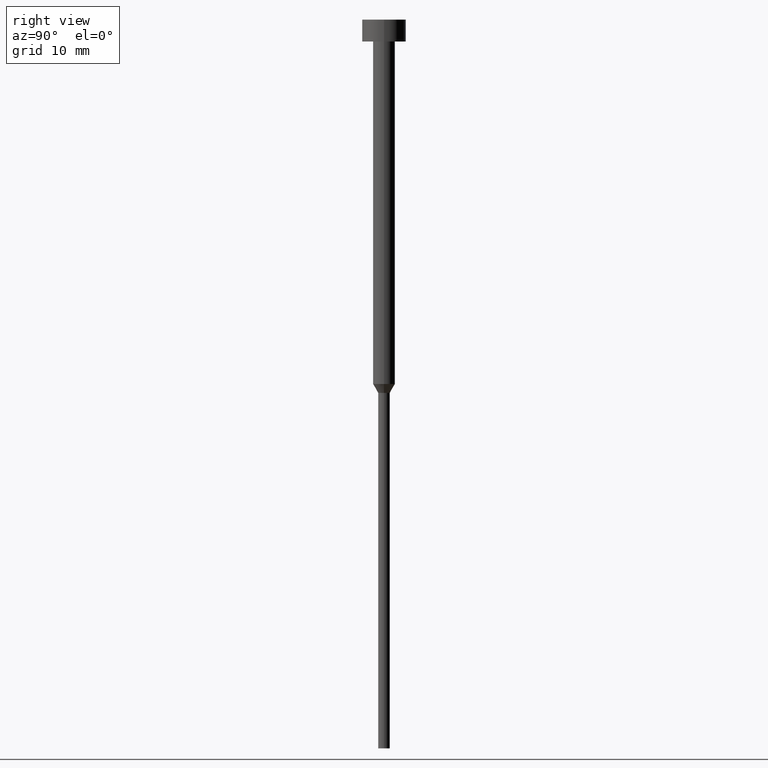
[diagram: clean part render]
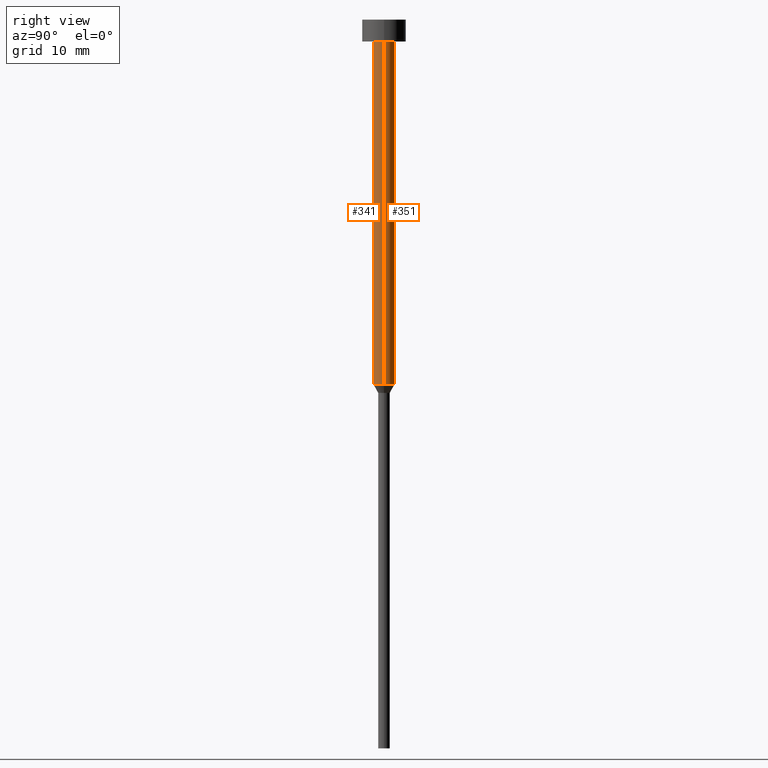
[diagram: same view with one multi-face feature highlighted, each face labeled with its STEP entity id]
A machine part, right view. The highlighted faces form ONE feature: a constant-radius fillet chain: 2 tangent blend faces with common blend radius 1.5 mm. The faces share edges in the B-rep.
Their STEP definitions:
[1] entity #341 (Cylinder):
#2 = DIRECTION ( 'NONE',  ( -0.000000000000000000, -0.000000000000000000, 1.000000000000000000 ) ) ;
#18 = CARTESIAN_POINT ( 'NONE',  ( -1.500000000000000000, 1.836970198721029934E-16, -3.000000000000000888 ) ) ;
#26 = FACE_OUTER_BOUND ( 'NONE', #109, .T. ) ;
#30 = CIRCLE ( 'NONE', #173, 1.500000000000000000 ) ;
#36 = VECTOR ( 'NONE', #80, 1000.000000000000000 ) ;
#53 = DIRECTION ( 'NONE',  ( -0.000000000000000000, -0.000000000000000000, 1.000000000000000000 ) ) ;
#54 = DIRECTION ( 'NONE',  ( 1.000000000000000000, 0.000000000000000000, 0.000000000000000000 ) ) ;
#63 = VERTEX_POINT ( 'NONE', #319 ) ;
#76 = CARTESIAN_POINT ( 'NONE',  ( 0.000000000000000000, 0.000000000000000000, 0.000000000000000000 ) ) ;
#80 = DIRECTION ( 'NONE',  ( -0.000000000000000000, -0.000000000000000000, 1.000000000000000000 ) ) ;
#104 = DIRECTION ( 'NONE',  ( 1.000000000000000000, 0.000000000000000000, 0.000000000000000000 ) ) ;
#105 = EDGE_CURVE ( 'NONE', #244, #63, #255, .T. ) ;
#109 = EDGE_LOOP ( 'NONE', ( #247, #280, #308, #230 ) ) ;
#121 = CIRCLE ( 'NONE', #125, 1.500000000000000000 ) ;
#125 = AXIS2_PLACEMENT_3D ( 'NONE', #210, #300, #54 ) ;
#127 = CARTESIAN_POINT ( 'NONE',  ( 1.500000000000000000, 0.000000000000000000, 0.000000000000000000 ) ) ;
#147 = VERTEX_POINT ( 'NONE', #18 ) ;
#166 = CARTESIAN_POINT ( 'NONE',  ( -1.500000000000000000, 1.836970198721029934E-16, -50.00000000000000000 ) ) ;
#173 = AXIS2_PLACEMENT_3D ( 'NONE', #211, #53, #104 ) ;
#181 = DIRECTION ( 'NONE',  ( 1.000000000000000000, 0.000000000000000000, 0.000000000000000000 ) ) ;
#207 = LINE ( 'NONE', #328, #36 ) ;
#209 = CARTESIAN_POINT ( 'NONE',  ( 1.500000000000000000, 0.000000000000000000, -50.00000000000000000 ) ) ;
#210 = CARTESIAN_POINT ( 'NONE',  ( 0.000000000000000000, 0.000000000000000000, -3.000000000000000888 ) ) ;
#211 = CARTESIAN_POINT ( 'NONE',  ( 0.000000000000000000, 0.000000000000000000, -50.00000000000000000 ) ) ;
#230 = ORIENTED_EDGE ( 'NONE', *, *, #295, .F. ) ;
#244 = VERTEX_POINT ( 'NONE', #209 ) ;
#247 = ORIENTED_EDGE ( 'NONE', *, *, #252, .F. ) ;
#251 = VERTEX_POINT ( 'NONE', #166 ) ;
#252 = EDGE_CURVE ( 'NONE', #251, #147, #207, .T. ) ;
#255 = LINE ( 'NONE', #127, #325 ) ;
#278 = EDGE_CURVE ( 'NONE', #251, #244, #30, .T. ) ;
#280 = ORIENTED_EDGE ( 'NONE', *, *, #278, .T. ) ;
#292 = DIRECTION ( 'NONE',  ( -0.000000000000000000, -0.000000000000000000, 1.000000000000000000 ) ) ;
#295 = EDGE_CURVE ( 'NONE', #147, #63, #121, .T. ) ;
#300 = DIRECTION ( 'NONE',  ( -0.000000000000000000, -0.000000000000000000, 1.000000000000000000 ) ) ;
#308 = ORIENTED_EDGE ( 'NONE', *, *, #105, .T. ) ;
#319 = CARTESIAN_POINT ( 'NONE',  ( 1.500000000000000000, 0.000000000000000000, -3.000000000000000888 ) ) ;
#325 = VECTOR ( 'NONE', #292, 1000.000000000000000 ) ;
#328 = CARTESIAN_POINT ( 'NONE',  ( -1.500000000000000000, 1.836970198721029934E-16, 0.000000000000000000 ) ) ;
#334 = AXIS2_PLACEMENT_3D ( 'NONE', #76, #2, #181 ) ;
#341 = ADVANCED_FACE ( 'NONE', ( #26 ), #354, .T. ) ;
#354 = CYLINDRICAL_SURFACE ( 'NONE', #334, 1.500000000000000000 ) ;
[2] entity #351 (Cylinder):
#18 = CARTESIAN_POINT ( 'NONE',  ( -1.500000000000000000, 1.836970198721029934E-16, -3.000000000000000888 ) ) ;
#31 = CYLINDRICAL_SURFACE ( 'NONE', #97, 1.500000000000000000 ) ;
#36 = VECTOR ( 'NONE', #80, 1000.000000000000000 ) ;
#40 = ORIENTED_EDGE ( 'NONE', *, *, #252, .T. ) ;
#59 = ORIENTED_EDGE ( 'NONE', *, *, #231, .F. ) ;
#63 = VERTEX_POINT ( 'NONE', #319 ) ;
#79 = AXIS2_PLACEMENT_3D ( 'NONE', #222, #346, #175 ) ;
#80 = DIRECTION ( 'NONE',  ( -0.000000000000000000, -0.000000000000000000, 1.000000000000000000 ) ) ;
#97 = AXIS2_PLACEMENT_3D ( 'NONE', #113, #236, #168 ) ;
#105 = EDGE_CURVE ( 'NONE', #244, #63, #255, .T. ) ;
#106 = CARTESIAN_POINT ( 'NONE',  ( 0.000000000000000000, 0.000000000000000000, -3.000000000000000888 ) ) ;
#108 = DIRECTION ( 'NONE',  ( -0.000000000000000000, -0.000000000000000000, 1.000000000000000000 ) ) ;
#113 = CARTESIAN_POINT ( 'NONE',  ( 0.000000000000000000, 0.000000000000000000, 0.000000000000000000 ) ) ;
#127 = CARTESIAN_POINT ( 'NONE',  ( 1.500000000000000000, 0.000000000000000000, 0.000000000000000000 ) ) ;
#134 = DIRECTION ( 'NONE',  ( 1.000000000000000000, 0.000000000000000000, 0.000000000000000000 ) ) ;
#147 = VERTEX_POINT ( 'NONE', #18 ) ;
#156 = EDGE_CURVE ( 'NONE', #244, #251, #198, .T. ) ;
#164 = ORIENTED_EDGE ( 'NONE', *, *, #105, .F. ) ;
#166 = CARTESIAN_POINT ( 'NONE',  ( -1.500000000000000000, 1.836970198721029934E-16, -50.00000000000000000 ) ) ;
#168 = DIRECTION ( 'NONE',  ( 1.000000000000000000, 0.000000000000000000, 0.000000000000000000 ) ) ;
#175 = DIRECTION ( 'NONE',  ( 1.000000000000000000, 0.000000000000000000, 0.000000000000000000 ) ) ;
#182 = CIRCLE ( 'NONE', #235, 1.500000000000000000 ) ;
#198 = CIRCLE ( 'NONE', #79, 1.500000000000000000 ) ;
#207 = LINE ( 'NONE', #328, #36 ) ;
#209 = CARTESIAN_POINT ( 'NONE',  ( 1.500000000000000000, 0.000000000000000000, -50.00000000000000000 ) ) ;
#222 = CARTESIAN_POINT ( 'NONE',  ( 0.000000000000000000, 0.000000000000000000, -50.00000000000000000 ) ) ;
#231 = EDGE_CURVE ( 'NONE', #63, #147, #182, .T. ) ;
#235 = AXIS2_PLACEMENT_3D ( 'NONE', #106, #108, #134 ) ;
#236 = DIRECTION ( 'NONE',  ( -0.000000000000000000, -0.000000000000000000, 1.000000000000000000 ) ) ;
#244 = VERTEX_POINT ( 'NONE', #209 ) ;
#251 = VERTEX_POINT ( 'NONE', #166 ) ;
#252 = EDGE_CURVE ( 'NONE', #251, #147, #207, .T. ) ;
#255 = LINE ( 'NONE', #127, #325 ) ;
#270 = FACE_OUTER_BOUND ( 'NONE', #312, .T. ) ;
#292 = DIRECTION ( 'NONE',  ( -0.000000000000000000, -0.000000000000000000, 1.000000000000000000 ) ) ;
#312 = EDGE_LOOP ( 'NONE', ( #335, #40, #59, #164 ) ) ;
#319 = CARTESIAN_POINT ( 'NONE',  ( 1.500000000000000000, 0.000000000000000000, -3.000000000000000888 ) ) ;
#325 = VECTOR ( 'NONE', #292, 1000.000000000000000 ) ;
#328 = CARTESIAN_POINT ( 'NONE',  ( -1.500000000000000000, 1.836970198721029934E-16, 0.000000000000000000 ) ) ;
#335 = ORIENTED_EDGE ( 'NONE', *, *, #156, .T. ) ;
#346 = DIRECTION ( 'NONE',  ( -0.000000000000000000, -0.000000000000000000, 1.000000000000000000 ) ) ;
#351 = ADVANCED_FACE ( 'NONE', ( #270 ), #31, .T. ) ;